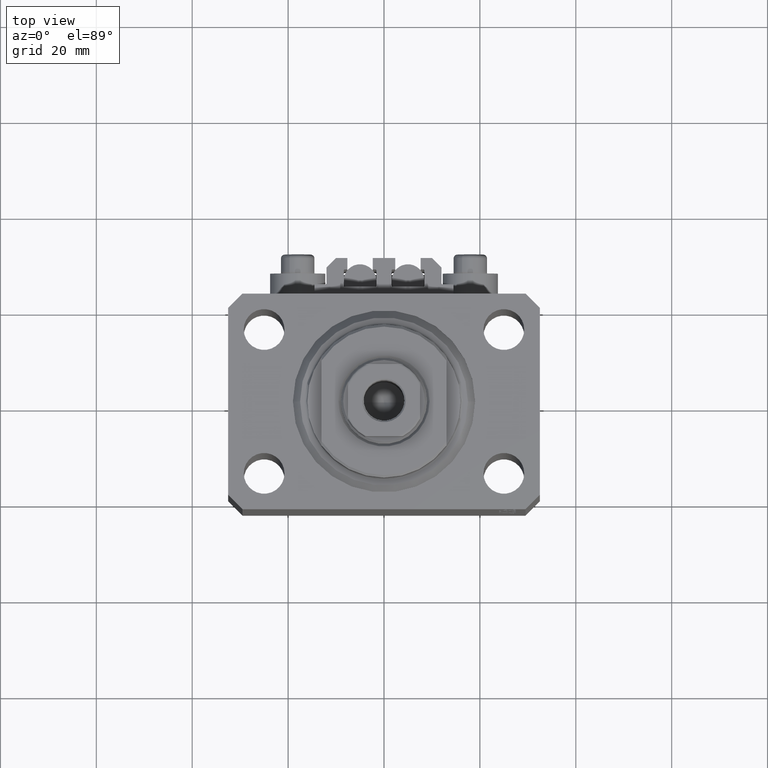
[diagram: clean part render]
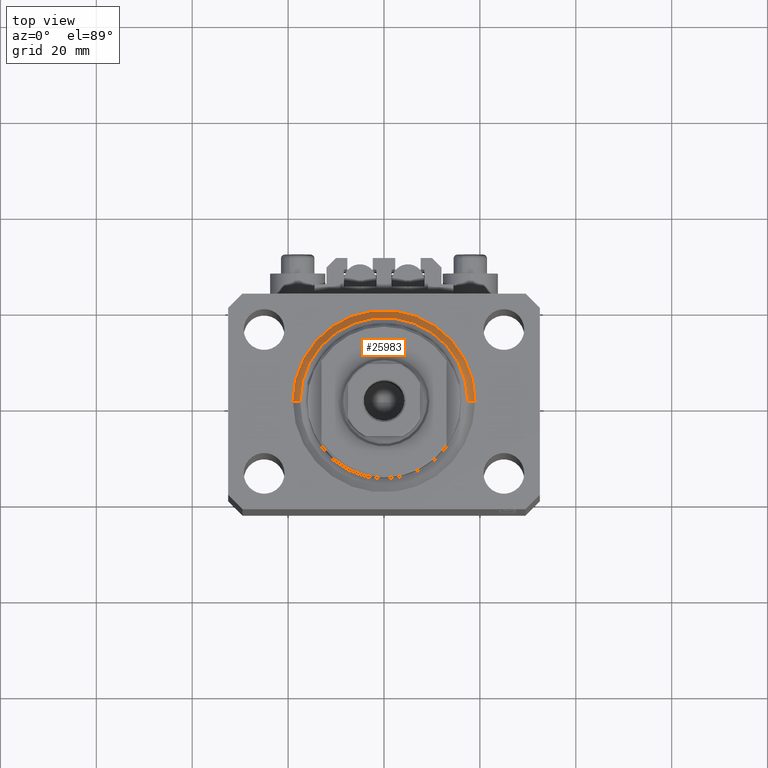
[diagram: same view with one face highlighted and labeled with its STEP entity id]
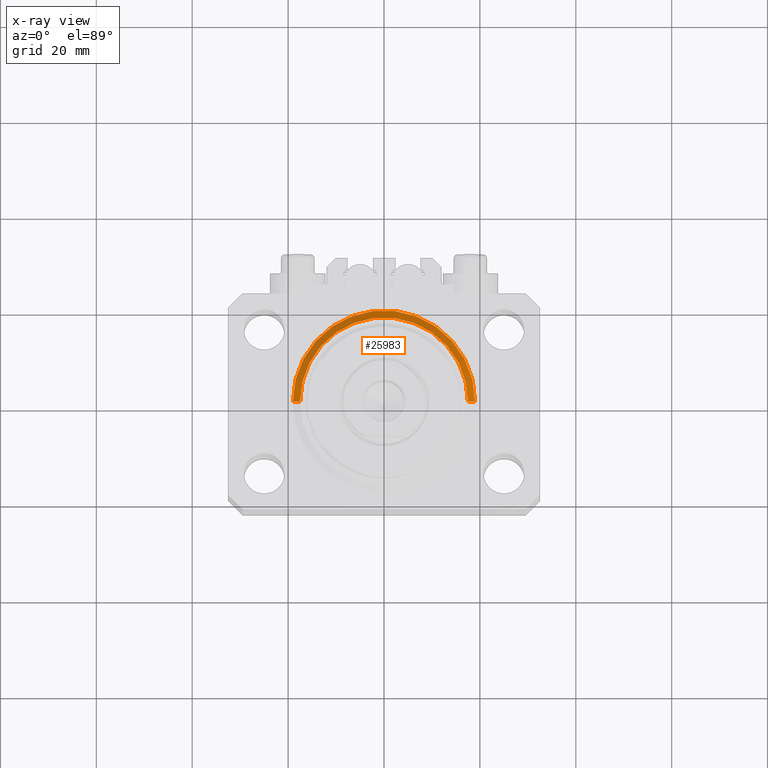
[diagram: x-ray of the same camera — body ghosted, the highlighted face saturated]
A machine part, top view. The second image highlights one B-rep face of the part: STEP entity #25983.
The next image is the same camera in x-ray: the body ghosted, the highlighted face saturated — about 0% of this face is hidden behind the body in this view.
In plain terms, the highlighted conical surface has half-angle 45 deg.
Its self-contained STEP definition (entity closure, byte-faithful):
#41 = LINE ( 'NONE', #22723, #39565 ) ;
#494 = DIRECTION ( 'NONE',  ( 0.7071067811865483499, 0.000000000000000000, 0.7071067811865467956 ) ) ;
#2557 = EDGE_CURVE ( 'NONE', #7666, #9577, #14352, .T. ) ;
#2771 = CARTESIAN_POINT ( 'NONE',  ( -17.49999999999999289, 2.234980408443919215E-15, 0.000000000000000000 ) ) ;
#2968 = CARTESIAN_POINT ( 'NONE',  ( 19.00000000000000000, 2.326828918379970970E-15, 1.500000000000004885 ) ) ;
#3564 = DIRECTION ( 'NONE',  ( 1.000000000000000000, 0.000000000000000000, 0.000000000000000000 ) ) ;
#3746 = VECTOR ( 'NONE', #16511, 1000.000000000000000 ) ;
#3781 = CIRCLE ( 'NONE', #8476, 19.00000000000000000 ) ;
#4521 = ORIENTED_EDGE ( 'NONE', *, *, #10145, .F. ) ;
#5095 = EDGE_LOOP ( 'NONE', ( #21478, #6217, #4521, #7060 ) ) ;
#6217 = ORIENTED_EDGE ( 'NONE', *, *, #25056, .T. ) ;
#7060 = ORIENTED_EDGE ( 'NONE', *, *, #12182, .F. ) ;
#7666 = VERTEX_POINT ( 'NONE', #2771 ) ;
#8476 = AXIS2_PLACEMENT_3D ( 'NONE', #31180, #45841, #19956 ) ;
#9577 = VERTEX_POINT ( 'NONE', #29179 ) ;
#10145 = EDGE_CURVE ( 'NONE', #48137, #29783, #3781, .T. ) ;
#10166 = FACE_OUTER_BOUND ( 'NONE', #5095, .T. ) ;
#10650 = CARTESIAN_POINT ( 'NONE',  ( 0.000000000000000000, 0.000000000000000000, 1.500000000000004885 ) ) ;
#12182 = EDGE_CURVE ( 'NONE', #9577, #48137, #41, .T. ) ;
#14352 = CIRCLE ( 'NONE', #37724, 17.49999999999999289 ) ;
#16511 = DIRECTION ( 'NONE',  ( -0.7071067811865483499, 8.659560562354943952E-17, 0.7071067811865467956 ) ) ;
#16738 = LINE ( 'NONE', #24297, #3746 ) ;
#17561 = DIRECTION ( 'NONE',  ( 1.000000000000000000, 0.000000000000000000, 0.000000000000000000 ) ) ;
#18536 = DIRECTION ( 'NONE',  ( -0.000000000000000000, -0.000000000000000000, -1.000000000000000000 ) ) ;
#19956 = DIRECTION ( 'NONE',  ( 1.000000000000000000, 0.000000000000000000, 0.000000000000000000 ) ) ;
#21478 = ORIENTED_EDGE ( 'NONE', *, *, #2557, .F. ) ;
#22723 = CARTESIAN_POINT ( 'NONE',  ( 19.00000000000000000, 0.000000000000000000, 1.500000000000004885 ) ) ;
#24297 = CARTESIAN_POINT ( 'NONE',  ( -19.00000000000000000, 2.326828918379970970E-15, 1.500000000000004885 ) ) ;
#25056 = EDGE_CURVE ( 'NONE', #7666, #29783, #16738, .T. ) ;
#25533 = DIRECTION ( 'NONE',  ( -0.000000000000000000, -0.000000000000000000, 1.000000000000000000 ) ) ;
#25983 = ADVANCED_FACE ( 'NONE', ( #10166 ), #27794, .T. ) ;
#27794 = CONICAL_SURFACE ( 'NONE', #29383, 19.00000000000000000, 0.7853981633974492782 ) ;
#28590 = CARTESIAN_POINT ( 'NONE',  ( -19.00000000000000000, 0.000000000000000000, 1.500000000000004885 ) ) ;
#29179 = CARTESIAN_POINT ( 'NONE',  ( 17.49999999999999289, 0.000000000000000000, 0.000000000000000000 ) ) ;
#29383 = AXIS2_PLACEMENT_3D ( 'NONE', #10650, #25533, #3564 ) ;
#29783 = VERTEX_POINT ( 'NONE', #28590 ) ;
#31180 = CARTESIAN_POINT ( 'NONE',  ( 0.000000000000000000, 0.000000000000000000, 1.500000000000004885 ) ) ;
#36607 = CARTESIAN_POINT ( 'NONE',  ( 0.000000000000000000, 0.000000000000000000, 0.000000000000000000 ) ) ;
#37724 = AXIS2_PLACEMENT_3D ( 'NONE', #36607, #18536, #17561 ) ;
#39565 = VECTOR ( 'NONE', #494, 1000.000000000000000 ) ;
#45841 = DIRECTION ( 'NONE',  ( -0.000000000000000000, -0.000000000000000000, 1.000000000000000000 ) ) ;
#48137 = VERTEX_POINT ( 'NONE', #2968 ) ;